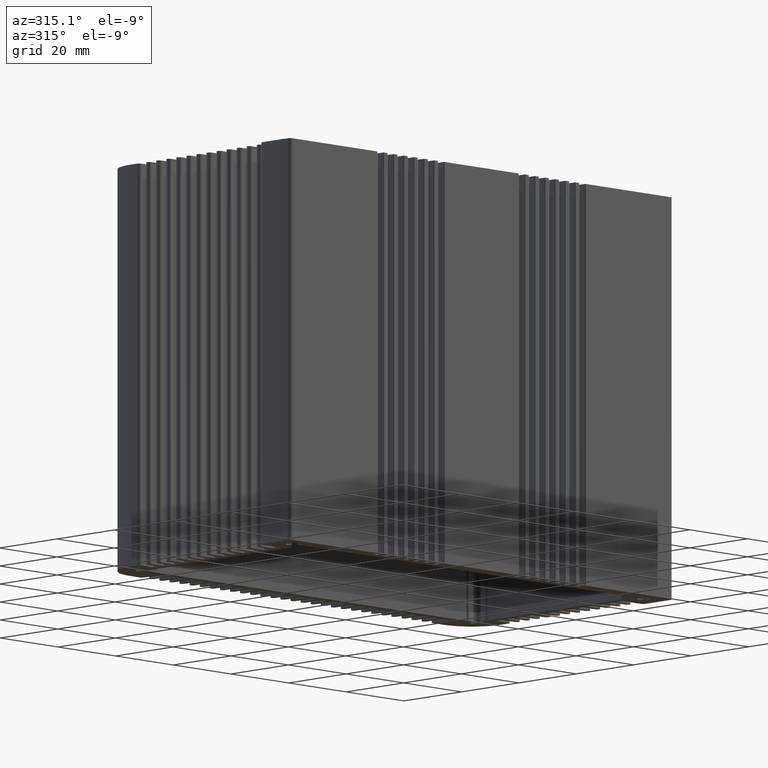
[diagram: clean part render]
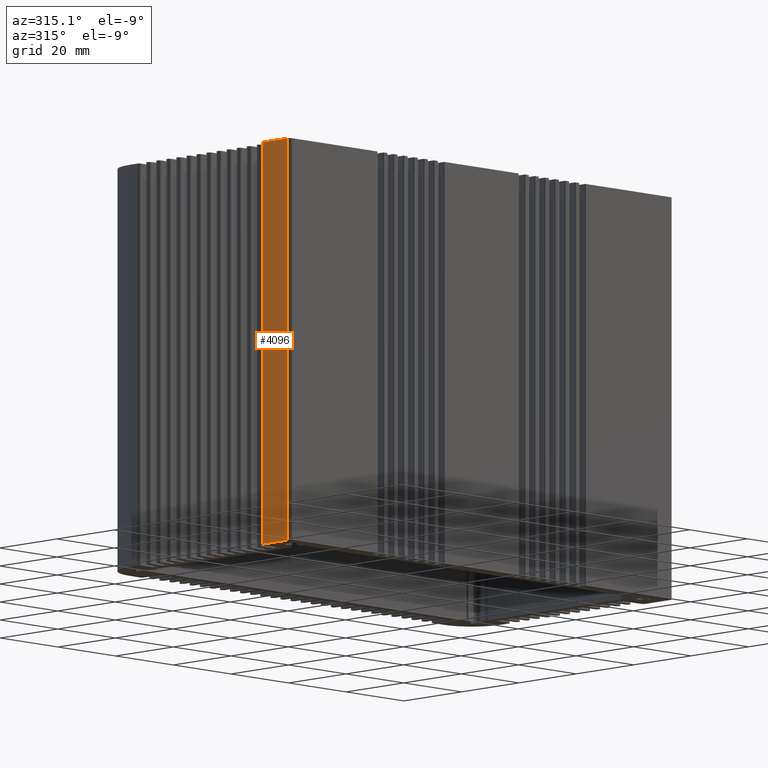
[diagram: same view with one face highlighted and labeled with its STEP entity id]
A machine part, auxiliary view. The second image highlights one B-rep face of the part: STEP entity #4096.
In plain terms, the highlighted planar face has unit normal (1, -0, 0).
Its self-contained STEP definition (entity closure, byte-faithful):
#24 = EDGE_CURVE ( 'NONE', #7709, #12299, #9524, .T. ) ;
#925 = VERTEX_POINT ( 'NONE', #7960 ) ;
#1077 = FACE_OUTER_BOUND ( 'NONE', #8775, .T. ) ;
#1732 = CARTESIAN_POINT ( 'NONE',  ( -46.52947535880240792, -57.99140371444926245, 50.00000000000000000 ) ) ;
#2032 = CARTESIAN_POINT ( 'NONE',  ( -46.52947535880257135, -66.49140371444924824, 50.00000000000000000 ) ) ;
#2967 = CARTESIAN_POINT ( 'NONE',  ( -46.52947535880240792, -57.99140371444926245, 50.00000000000000000 ) ) ;
#3177 = DIRECTION ( 'NONE',  ( 1.000000000000000000, -2.612289469706252762E-14, 0.0000000000000000000 ) ) ;
#3611 = ORIENTED_EDGE ( 'NONE', *, *, #6307, .T. ) ;
#4096 = ADVANCED_FACE ( 'NONE', ( #1077 ), #10539, .F. ) ;
#4924 = DIRECTION ( 'NONE',  ( -0.0000000000000000000, -0.0000000000000000000, -1.000000000000000000 ) ) ;
#5430 = CARTESIAN_POINT ( 'NONE',  ( -46.52947535880235108, -57.99140371444926245, 50.00000000000000000 ) ) ;
#5578 = ORIENTED_EDGE ( 'NONE', *, *, #12462, .F. ) ;
#5796 = LINE ( 'NONE', #1732, #8283 ) ;
#6237 = DIRECTION ( 'NONE',  ( -2.612289469706252762E-14, -1.000000000000000000, 0.0000000000000000000 ) ) ;
#6307 = EDGE_CURVE ( 'NONE', #7709, #11134, #5796, .T. ) ;
#6457 = VECTOR ( 'NONE', #6237, 1000.000000000000000 ) ;
#6671 = VECTOR ( 'NONE', #6707, 1000.000000000000000 ) ;
#6707 = DIRECTION ( 'NONE',  ( -2.612289469706252762E-14, -1.000000000000000000, 0.0000000000000000000 ) ) ;
#6915 = LINE ( 'NONE', #2032, #9412 ) ;
#7709 = VERTEX_POINT ( 'NONE', #2967 ) ;
#7960 = CARTESIAN_POINT ( 'NONE',  ( -46.52947535880257135, -66.49140371444924824, -50.00000000000000000 ) ) ;
#8028 = CARTESIAN_POINT ( 'NONE',  ( -46.52947535880257135, -66.49140371444924824, 50.00000000000000000 ) ) ;
#8283 = VECTOR ( 'NONE', #4924, 1000.000000000000000 ) ;
#8775 = EDGE_LOOP ( 'NONE', ( #13147, #5578, #8961, #3611 ) ) ;
#8961 = ORIENTED_EDGE ( 'NONE', *, *, #24, .F. ) ;
#9298 = LINE ( 'NONE', #12605, #6457 ) ;
#9412 = VECTOR ( 'NONE', #10509, 1000.000000000000000 ) ;
#9511 = CARTESIAN_POINT ( 'NONE',  ( -46.52947535880235108, -57.99140371444926245, 50.00000000000000000 ) ) ;
#9524 = LINE ( 'NONE', #5430, #6671 ) ;
#10058 = EDGE_CURVE ( 'NONE', #11134, #925, #9298, .T. ) ;
#10509 = DIRECTION ( 'NONE',  ( -0.0000000000000000000, -0.0000000000000000000, -1.000000000000000000 ) ) ;
#10539 = PLANE ( 'NONE',  #11469 ) ;
#10573 = DIRECTION ( 'NONE',  ( 2.612289469706252762E-14, 1.000000000000000000, 0.0000000000000000000 ) ) ;
#11134 = VERTEX_POINT ( 'NONE', #13296 ) ;
#11469 = AXIS2_PLACEMENT_3D ( 'NONE', #9511, #3177, #10573 ) ;
#12299 = VERTEX_POINT ( 'NONE', #8028 ) ;
#12462 = EDGE_CURVE ( 'NONE', #12299, #925, #6915, .T. ) ;
#12605 = CARTESIAN_POINT ( 'NONE',  ( -46.52947535880235108, -57.99140371444926245, -50.00000000000000000 ) ) ;
#13147 = ORIENTED_EDGE ( 'NONE', *, *, #10058, .T. ) ;
#13296 = CARTESIAN_POINT ( 'NONE',  ( -46.52947535880240792, -57.99140371444926245, -50.00000000000000000 ) ) ;